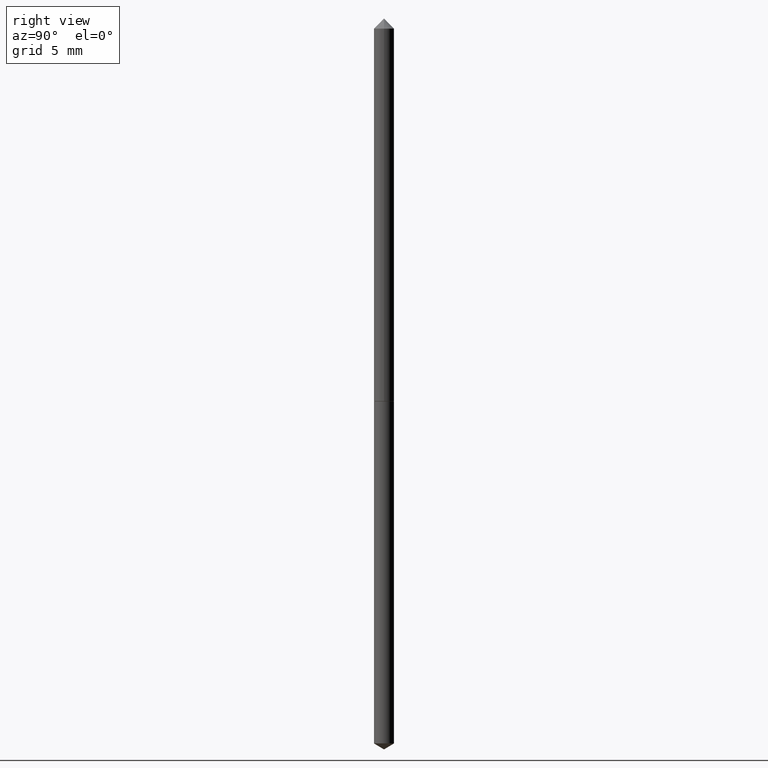
[diagram: clean part render]
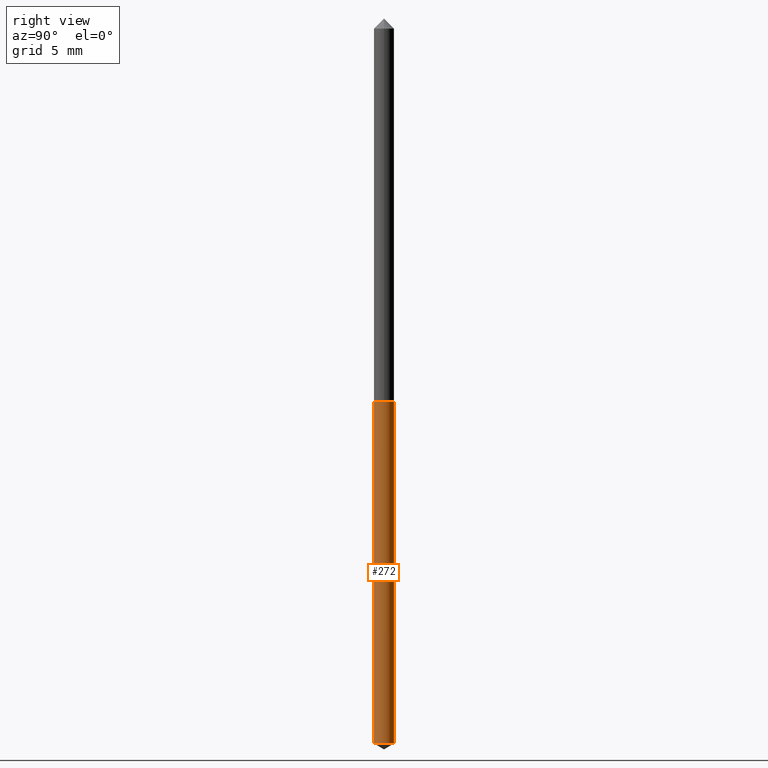
[diagram: same view with one face highlighted and labeled with its STEP entity id]
A machine part, right view. The second image highlights one B-rep face of the part: STEP entity #272.
In plain terms, the highlighted cylindrical surface (edge-blend (fillet) strip) has radius 0.5207 mm, axis along (-0, 0, 1).
Its self-contained STEP definition (entity closure, byte-faithful):
#1 = ORIENTED_EDGE ( 'NONE', *, *, #162, .F. ) ;
#10 = ORIENTED_EDGE ( 'NONE', *, *, #248, .T. ) ;
#22 = CARTESIAN_POINT ( 'NONE',  ( 3.638142102105486561E-29, -5.194127398154383718E-15, -1.487682357309935588 ) ) ;
#25 = CARTESIAN_POINT ( 'NONE',  ( -1.431507348925320587E-16, -0.02050000000000519809, -1.487682357309935588 ) ) ;
#26 = VERTEX_POINT ( 'NONE', #182 ) ;
#33 = CARTESIAN_POINT ( 'NONE',  ( 1.456612608308398713E-16, 0.02049999999999723918, -0.7910000000000002585 ) ) ;
#36 = EDGE_LOOP ( 'NONE', ( #10, #342, #1, #114 ) ) ;
#43 = EDGE_CURVE ( 'NONE', #26, #319, #166, .T. ) ;
#46 = DIRECTION ( 'NONE',  ( -2.445556800077080813E-29, 3.491355326581580179E-15, 1.000000000000000000 ) ) ;
#52 = CARTESIAN_POINT ( 'NONE',  ( 1.456612608308570290E-16, 0.02049999999999723918, -0.7910000000000002585 ) ) ;
#62 = DIRECTION ( 'NONE',  ( -2.445556800077080813E-29, 3.491355326581580179E-15, 1.000000000000000000 ) ) ;
#69 = CARTESIAN_POINT ( 'NONE',  ( 1.934365825692443391E-29, -2.761761739024928692E-15, -0.7910000000000001474 ) ) ;
#73 = DIRECTION ( 'NONE',  ( -2.445556800077080813E-29, 3.491355326581580179E-15, 1.000000000000000000 ) ) ;
#89 = CIRCLE ( 'NONE', #343, 0.02050000000000000086 ) ;
#114 = ORIENTED_EDGE ( 'NONE', *, *, #339, .F. ) ;
#123 = FACE_OUTER_BOUND ( 'NONE', #36, .T. ) ;
#128 = DIRECTION ( 'NONE',  ( -2.445556800077080813E-29, 3.491355326581580179E-15, 1.000000000000000000 ) ) ;
#141 = LINE ( 'NONE', #340, #243 ) ;
#149 = VERTEX_POINT ( 'NONE', #161 ) ;
#157 = DIRECTION ( 'NONE',  ( -6.982962677686266711E-15, -1.000000000000000000, 6.663043886986007407E-15 ) ) ;
#161 = CARTESIAN_POINT ( 'NONE',  ( -1.431507348925491178E-16, -0.02050000000000276254, -0.7909999999999999254 ) ) ;
#162 = EDGE_CURVE ( 'NONE', #149, #319, #89, .T. ) ;
#165 = DIRECTION ( 'NONE',  ( -2.445556800077080813E-29, 3.491355326581580179E-15, 1.000000000000000000 ) ) ;
#166 = LINE ( 'NONE', #33, #238 ) ;
#182 = CARTESIAN_POINT ( 'NONE',  ( 1.456612608308569058E-16, 0.02049999999999480710, -1.487682357309935588 ) ) ;
#206 = AXIS2_PLACEMENT_3D ( 'NONE', #355, #128, #208 ) ;
#208 = DIRECTION ( 'NONE',  ( -6.982962677686266711E-15, -1.000000000000000000, 6.663043886986007407E-15 ) ) ;
#224 = AXIS2_PLACEMENT_3D ( 'NONE', #22, #73, #241 ) ;
#234 = CYLINDRICAL_SURFACE ( 'NONE', #206, 0.02050000000000000086 ) ;
#238 = VECTOR ( 'NONE', #165, 39.37007874015748143 ) ;
#241 = DIRECTION ( 'NONE',  ( -6.982962677686266711E-15, -1.000000000000000000, 0.000000000000000000 ) ) ;
#243 = VECTOR ( 'NONE', #62, 39.37007874015748143 ) ;
#248 = EDGE_CURVE ( 'NONE', #266, #26, #291, .T. ) ;
#266 = VERTEX_POINT ( 'NONE', #25 ) ;
#272 = ADVANCED_FACE ( 'NONE', ( #123 ), #234, .T. ) ;
#291 = CIRCLE ( 'NONE', #224, 0.02050000000000000086 ) ;
#319 = VERTEX_POINT ( 'NONE', #52 ) ;
#339 = EDGE_CURVE ( 'NONE', #266, #149, #141, .T. ) ;
#340 = CARTESIAN_POINT ( 'NONE',  ( -1.431507348925491178E-16, -0.02050000000000276254, -0.7909999999999999254 ) ) ;
#342 = ORIENTED_EDGE ( 'NONE', *, *, #43, .T. ) ;
#343 = AXIS2_PLACEMENT_3D ( 'NONE', #69, #46, #157 ) ;
#355 = CARTESIAN_POINT ( 'NONE',  ( 1.934365825692443391E-29, -2.761761739024928692E-15, -0.7910000000000001474 ) ) ;